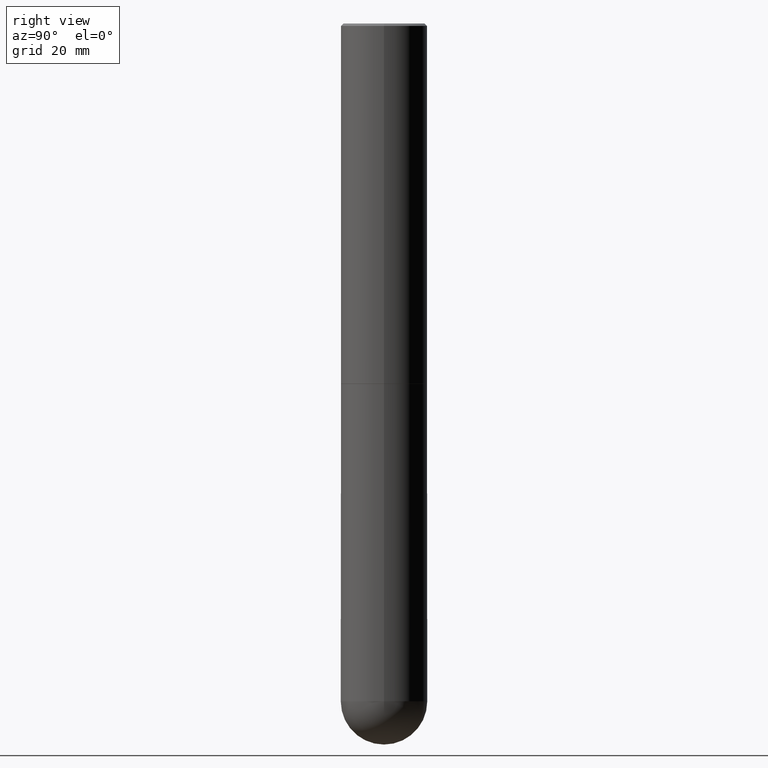
[diagram: clean part render]
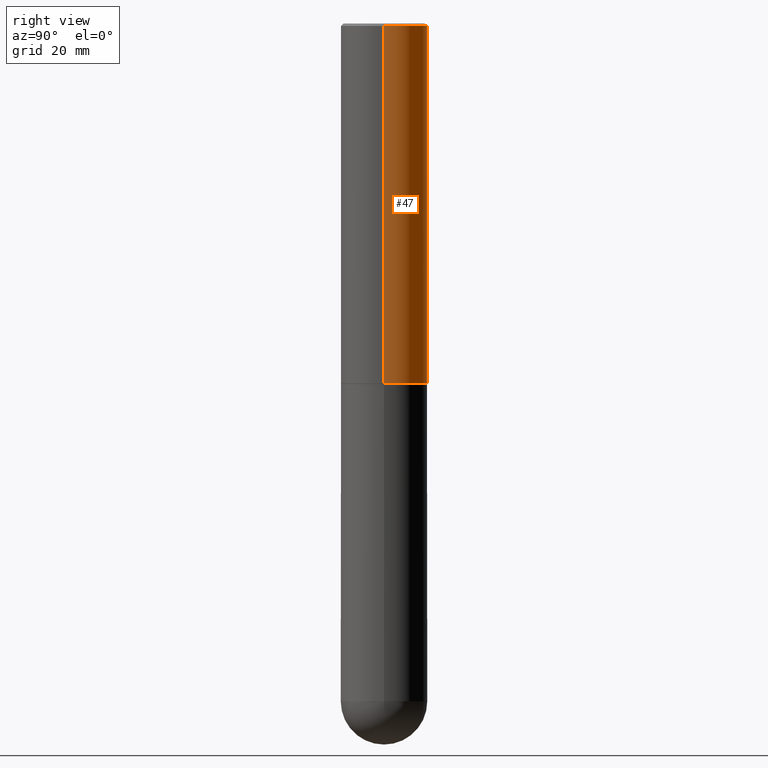
[diagram: same view with one face highlighted and labeled with its STEP entity id]
A machine part, right view. The second image highlights one B-rep face of the part: STEP entity #47.
In plain terms, the highlighted cylindrical surface (partial cylindrical patch) has radius 9.0005 mm, axis along (-0, 0, 1).
Its self-contained STEP definition (entity closure, byte-faithful):
#14 = DIRECTION ( 'NONE',  ( -2.445468806185136597E-29, 3.491481338843145583E-15, 1.000000000000000000 ) ) ;
#25 = CARTESIAN_POINT ( 'NONE',  ( -0.3543499999999999983, 2.404583198061265396E-15, -0.02000000000000008021 ) ) ;
#40 = ORIENTED_EDGE ( 'NONE', *, *, #385, .F. ) ;
#47 = ADVANCED_FACE ( 'NONE', ( #221 ), #214, .T. ) ;
#50 = AXIS2_PLACEMENT_3D ( 'NONE', #117, #237, #335 ) ;
#66 = DIRECTION ( 'NONE',  ( -2.445468806185136877E-29, 3.491481338843145188E-15, 1.000000000000000000 ) ) ;
#85 = VERTEX_POINT ( 'NONE', #380 ) ;
#86 = AXIS2_PLACEMENT_3D ( 'NONE', #403, #14, #124 ) ;
#99 = ORIENTED_EDGE ( 'NONE', *, *, #174, .F. ) ;
#117 = CARTESIAN_POINT ( 'NONE',  ( 4.890937612370293302E-31, -6.982962677686318726E-17, -0.02000000000000008021 ) ) ;
#124 = DIRECTION ( 'NONE',  ( 1.000000000000000000, -6.982962677686268288E-15, 0.000000000000000000 ) ) ;
#126 = CARTESIAN_POINT ( 'NONE',  ( 0.000000000000000000, 0.000000000000000000, 0.000000000000000000 ) ) ;
#140 = VECTOR ( 'NONE', #154, 39.37007874015748143 ) ;
#141 = ORIENTED_EDGE ( 'NONE', *, *, #334, .T. ) ;
#144 = VERTEX_POINT ( 'NONE', #216 ) ;
#154 = DIRECTION ( 'NONE',  ( -2.445468806185136877E-29, 3.491481338843145188E-15, 1.000000000000000000 ) ) ;
#172 = VERTEX_POINT ( 'NONE', #25 ) ;
#174 = EDGE_CURVE ( 'NONE', #85, #144, #317, .T. ) ;
#178 = CARTESIAN_POINT ( 'NONE',  ( -0.3543500000000004424, -2.670009363154166740E-15, -2.951700000000000212 ) ) ;
#181 = CARTESIAN_POINT ( 'NONE',  ( 0.3543500000000002204, -2.474412824838130272E-15, 1.727873240503290870E-29 ) ) ;
#192 = AXIS2_PLACEMENT_3D ( 'NONE', #126, #255, #277 ) ;
#194 = CARTESIAN_POINT ( 'NONE',  ( -0.3543500000000002204, 2.517808184165916574E-15, -1.743024649231827187E-29 ) ) ;
#211 = VERTEX_POINT ( 'NONE', #178 ) ;
#212 = CIRCLE ( 'NONE', #50, 0.3543499999999999983 ) ;
#214 = CYLINDRICAL_SURFACE ( 'NONE', #192, 0.3543500000000002204 ) ;
#216 = CARTESIAN_POINT ( 'NONE',  ( 0.3543499999999999983, -2.500847092287205690E-15, -0.02000000000000008021 ) ) ;
#221 = FACE_OUTER_BOUND ( 'NONE', #336, .T. ) ;
#237 = DIRECTION ( 'NONE',  ( -2.445468806185136597E-29, 3.491481338843145583E-15, 1.000000000000000000 ) ) ;
#255 = DIRECTION ( 'NONE',  ( -2.445468806185136597E-29, 3.491481338843145583E-15, 1.000000000000000000 ) ) ;
#260 = LINE ( 'NONE', #194, #319 ) ;
#275 = CIRCLE ( 'NONE', #86, 0.3543500000000004424 ) ;
#277 = DIRECTION ( 'NONE',  ( 1.000000000000000000, -6.982962677686266711E-15, 4.876176775795935793E-29 ) ) ;
#317 = LINE ( 'NONE', #181, #140 ) ;
#319 = VECTOR ( 'NONE', #66, 39.37007874015748143 ) ;
#334 = EDGE_CURVE ( 'NONE', #85, #211, #275, .T. ) ;
#335 = DIRECTION ( 'NONE',  ( 1.000000000000000000, -6.982962677686266711E-15, 0.000000000000000000 ) ) ;
#336 = EDGE_LOOP ( 'NONE', ( #141, #355, #40, #99 ) ) ;
#355 = ORIENTED_EDGE ( 'NONE', *, *, #395, .T. ) ;
#380 = CARTESIAN_POINT ( 'NONE',  ( 0.3543500000000004424, -1.278021829270144662E-14, -2.951700000000000212 ) ) ;
#385 = EDGE_CURVE ( 'NONE', #144, #172, #212, .T. ) ;
#395 = EDGE_CURVE ( 'NONE', #211, #172, #260, .T. ) ;
#403 = CARTESIAN_POINT ( 'NONE',  ( 7.218290275216666916E-29, -1.030580546786331359E-14, -2.951700000000000212 ) ) ;